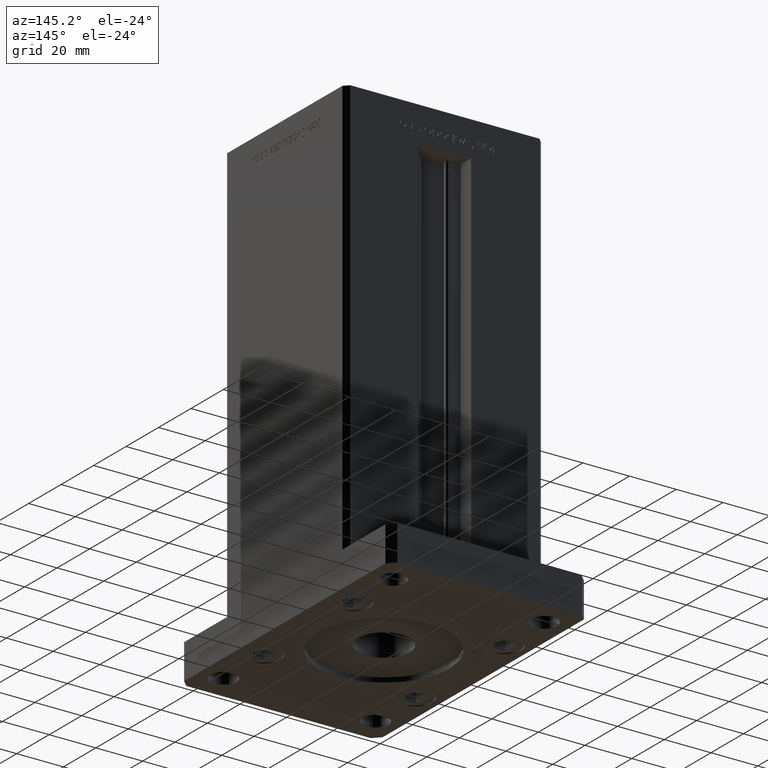
[diagram: clean part render]
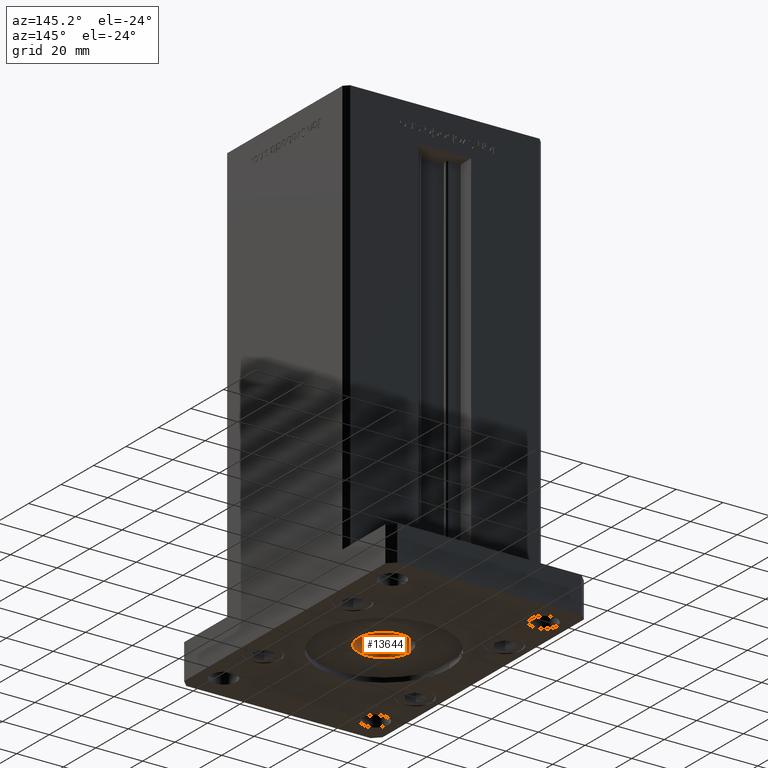
[diagram: same view with one face highlighted and labeled with its STEP entity id]
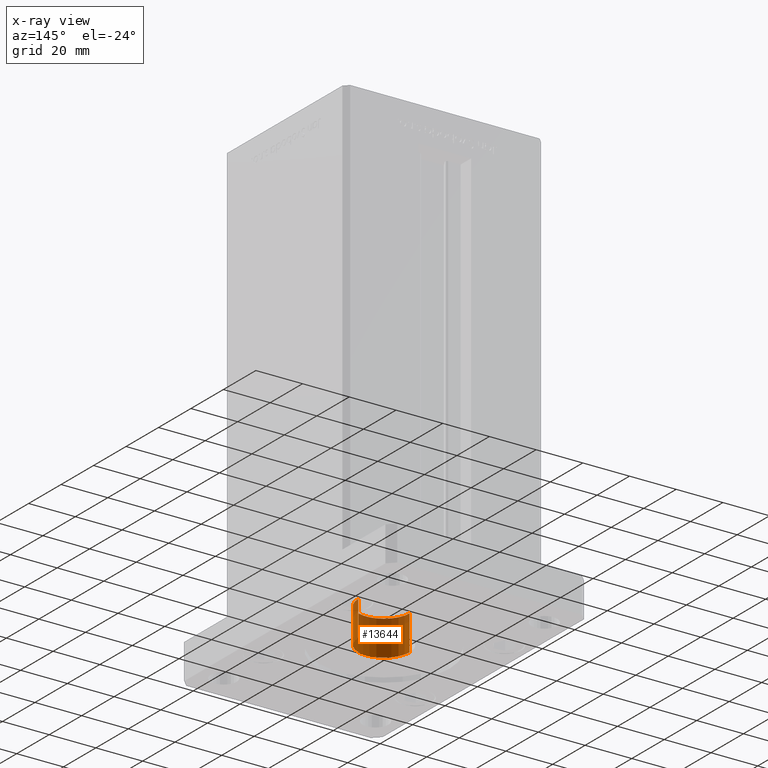
[diagram: x-ray of the same camera — body ghosted, the highlighted face saturated]
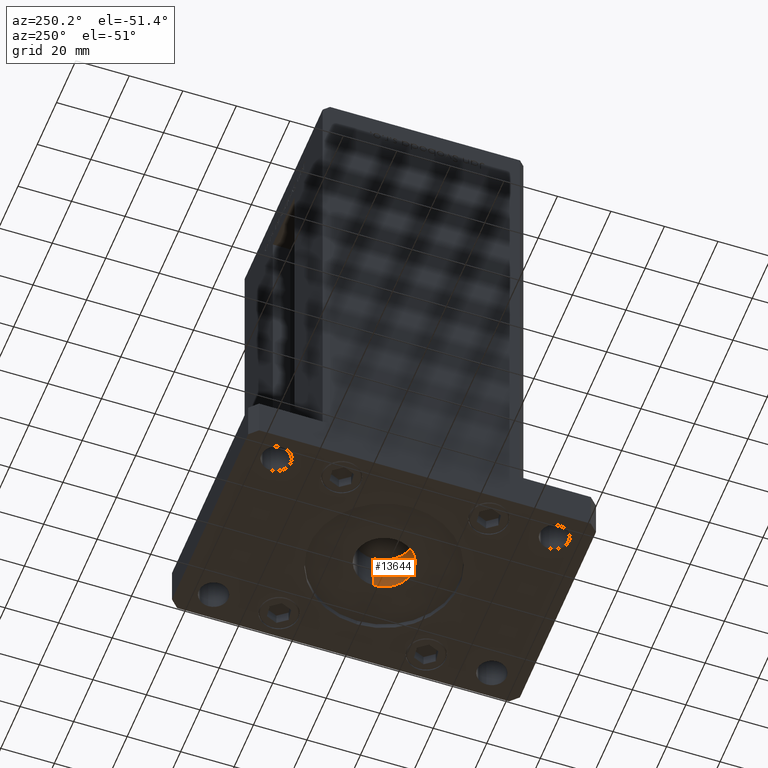
[diagram: same view with one face highlighted and labeled with its STEP entity id]
A machine part, auxiliary view. The second image highlights one B-rep face of the part: STEP entity #13644.
The next image is the same camera in x-ray: the body ghosted, the highlighted face saturated — about 22% of this face is hidden behind the body in this view.
A second angle (auxiliary view) of the same face is appended — the face is thin or edge-on in the first view.
In plain terms, the highlighted cylindrical surface (edge-blend (fillet) strip) has radius 11 mm, axis along (0, 0, 1).
Its self-contained STEP definition (entity closure, byte-faithful):
#1335 = DIRECTION ( 'NONE',  ( -0.000000000000000000, -0.000000000000000000, 1.000000000000000000 ) ) ;
#1491 = CARTESIAN_POINT ( 'NONE',  ( -11.00000000000000000, 1.347111479062088405E-15, 17.00000000000000000 ) ) ;
#2267 = DIRECTION ( 'NONE',  ( -0.000000000000000000, -0.000000000000000000, 1.000000000000000000 ) ) ;
#2760 = AXIS2_PLACEMENT_3D ( 'NONE', #34104, #2267, #13652 ) ;
#3171 = DIRECTION ( 'NONE',  ( -0.000000000000000000, -0.000000000000000000, 1.000000000000000000 ) ) ;
#4319 = CIRCLE ( 'NONE', #11206, 11.00000000000000000 ) ;
#4595 = CARTESIAN_POINT ( 'NONE',  ( 11.00000000000000000, 0.000000000000000000, 0.000000000000000000 ) ) ;
#4772 = VERTEX_POINT ( 'NONE', #45889 ) ;
#5928 = FACE_OUTER_BOUND ( 'NONE', #40056, .T. ) ;
#7291 = DIRECTION ( 'NONE',  ( 0.000000000000000000, 0.000000000000000000, 1.000000000000000000 ) ) ;
#8448 = VECTOR ( 'NONE', #3171, 1000.000000000000000 ) ;
#9727 = CARTESIAN_POINT ( 'NONE',  ( 0.000000000000000000, 0.000000000000000000, 0.000000000000000000 ) ) ;
#10382 = CARTESIAN_POINT ( 'NONE',  ( 11.00000000000000000, 0.000000000000000000, 2.000000000000000000 ) ) ;
#11206 = AXIS2_PLACEMENT_3D ( 'NONE', #28593, #7291, #15950 ) ;
#13644 = ADVANCED_FACE ( 'NONE', ( #5928 ), #18639, .F. ) ;
#13652 = DIRECTION ( 'NONE',  ( -1.000000000000000000, 0.000000000000000000, 0.000000000000000000 ) ) ;
#15950 = DIRECTION ( 'NONE',  ( 1.000000000000000000, 0.000000000000000000, 0.000000000000000000 ) ) ;
#17268 = ORIENTED_EDGE ( 'NONE', *, *, #32560, .F. ) ;
#18639 = CYLINDRICAL_SURFACE ( 'NONE', #18684, 11.00000000000000000 ) ;
#18684 = AXIS2_PLACEMENT_3D ( 'NONE', #9727, #21895, #38285 ) ;
#20996 = ORIENTED_EDGE ( 'NONE', *, *, #27116, .T. ) ;
#21577 = ORIENTED_EDGE ( 'NONE', *, *, #23377, .T. ) ;
#21895 = DIRECTION ( 'NONE',  ( -0.000000000000000000, -0.000000000000000000, 1.000000000000000000 ) ) ;
#22624 = VECTOR ( 'NONE', #1335, 1000.000000000000000 ) ;
#23377 = EDGE_CURVE ( 'NONE', #33609, #33507, #44414, .T. ) ;
#26088 = CIRCLE ( 'NONE', #2760, 11.00000000000000000 ) ;
#27116 = EDGE_CURVE ( 'NONE', #33507, #4772, #4319, .T. ) ;
#28593 = CARTESIAN_POINT ( 'NONE',  ( 0.000000000000000000, 0.000000000000000000, 17.00000000000000000 ) ) ;
#32560 = EDGE_CURVE ( 'NONE', #33609, #37964, #26088, .T. ) ;
#33507 = VERTEX_POINT ( 'NONE', #1491 ) ;
#33609 = VERTEX_POINT ( 'NONE', #34296 ) ;
#34104 = CARTESIAN_POINT ( 'NONE',  ( 0.000000000000000000, 0.000000000000000000, 2.000000000000000000 ) ) ;
#34296 = CARTESIAN_POINT ( 'NONE',  ( -11.00000000000000000, 1.347111479062088405E-15, 2.000000000000000000 ) ) ;
#35526 = CARTESIAN_POINT ( 'NONE',  ( -11.00000000000000000, 1.347111479062088405E-15, 0.000000000000000000 ) ) ;
#36471 = EDGE_CURVE ( 'NONE', #37964, #4772, #50666, .T. ) ;
#37964 = VERTEX_POINT ( 'NONE', #10382 ) ;
#38285 = DIRECTION ( 'NONE',  ( 1.000000000000000000, 0.000000000000000000, 0.000000000000000000 ) ) ;
#40056 = EDGE_LOOP ( 'NONE', ( #17268, #21577, #20996, #50875 ) ) ;
#44414 = LINE ( 'NONE', #35526, #8448 ) ;
#45889 = CARTESIAN_POINT ( 'NONE',  ( 11.00000000000000000, 0.000000000000000000, 17.00000000000000000 ) ) ;
#50666 = LINE ( 'NONE', #4595, #22624 ) ;
#50875 = ORIENTED_EDGE ( 'NONE', *, *, #36471, .F. ) ;